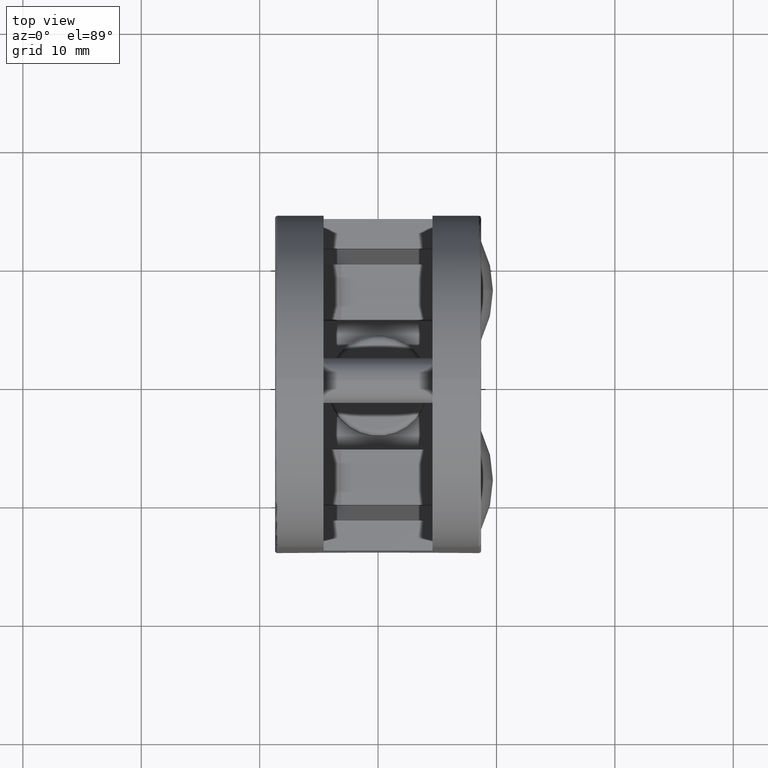
[diagram: clean part render]
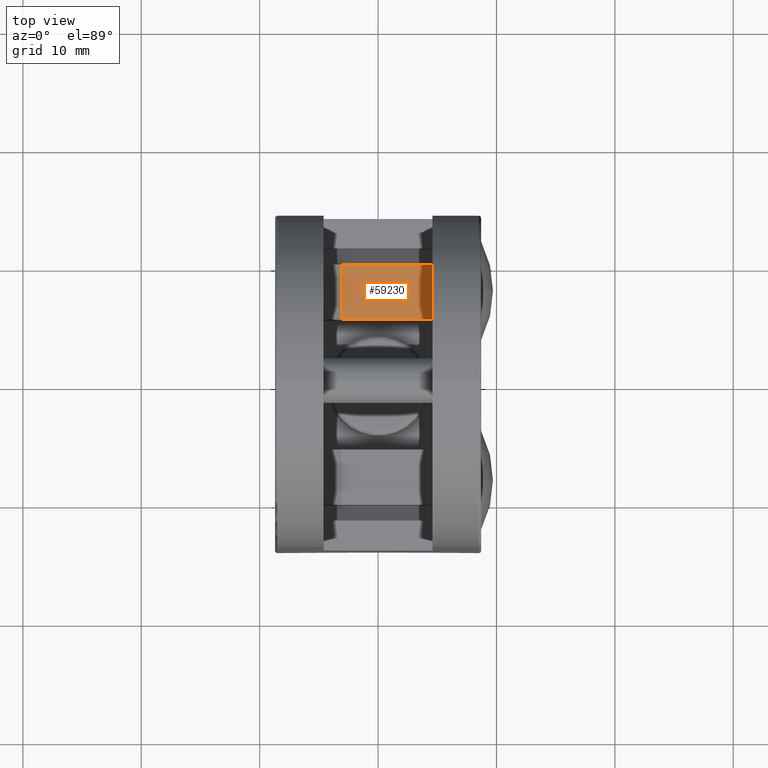
[diagram: same view with one face highlighted and labeled with its STEP entity id]
A machine part, top view. The second image highlights one B-rep face of the part: STEP entity #59230.
In plain terms, the highlighted planar face has unit normal (0, 0, -1).
Its self-contained STEP definition (entity closure, byte-faithful):
#2431 = DIRECTION ( 'NONE',  ( 0.0000000000000000000, 1.000000000000000000, 0.0000000000000000000 ) ) ;
#2957 = EDGE_LOOP ( 'NONE', ( #41777, #22920, #7260, #9313 ) ) ;
#5779 = CARTESIAN_POINT ( 'NONE',  ( 13.29999999999999900, 10.14999999999999900, 10.49999999999999600 ) ) ;
#6482 = VERTEX_POINT ( 'NONE', #11700 ) ;
#6821 = CARTESIAN_POINT ( 'NONE',  ( 5.599999999999998800, 3.378679656440356700, 10.50000000000000000 ) ) ;
#7260 = ORIENTED_EDGE ( 'NONE', *, *, #50876, .F. ) ;
#9025 = DIRECTION ( 'NONE',  ( 0.0000000000000000000, -1.000000000000000000, 0.0000000000000000000 ) ) ;
#9313 = ORIENTED_EDGE ( 'NONE', *, *, #50278, .F. ) ;
#9719 = VERTEX_POINT ( 'NONE', #13907 ) ;
#11700 = CARTESIAN_POINT ( 'NONE',  ( 5.599999999999998800, 10.14999999999999900, 10.50000000000000000 ) ) ;
#13907 = CARTESIAN_POINT ( 'NONE',  ( 13.29999999999999900, 5.499999999999999100, 10.49999999999999600 ) ) ;
#14101 = EDGE_CURVE ( 'NONE', #29106, #6482, #36912, .T. ) ;
#14694 = AXIS2_PLACEMENT_3D ( 'NONE', #5779, #25118, #58191 ) ;
#15736 = EDGE_CURVE ( 'NONE', #45143, #6482, #57940, .T. ) ;
#18063 = CARTESIAN_POINT ( 'NONE',  ( 5.599999999999998800, 5.499999999999999100, 10.50000000000000000 ) ) ;
#19014 = VECTOR ( 'NONE', #9025, 1000.000000000000000 ) ;
#19810 = CARTESIAN_POINT ( 'NONE',  ( 13.29999999999999900, 10.14999999999999900, 10.49999999999999600 ) ) ;
#22696 = VECTOR ( 'NONE', #32748, 1000.000000000000000 ) ;
#22920 = ORIENTED_EDGE ( 'NONE', *, *, #15736, .F. ) ;
#24009 = VECTOR ( 'NONE', #2431, 1000.000000000000000 ) ;
#25118 = DIRECTION ( 'NONE',  ( 0.0000000000000000000, 0.0000000000000000000, -1.000000000000000000 ) ) ;
#29106 = VERTEX_POINT ( 'NONE', #40196 ) ;
#31946 = FACE_OUTER_BOUND ( 'NONE', #2957, .T. ) ;
#32748 = DIRECTION ( 'NONE',  ( -1.000000000000000000, -0.0000000000000000000, -0.0000000000000000000 ) ) ;
#33942 = VECTOR ( 'NONE', #34779, 1000.000000000000000 ) ;
#34779 = DIRECTION ( 'NONE',  ( -1.000000000000000000, -0.0000000000000000000, -0.0000000000000000000 ) ) ;
#36912 = LINE ( 'NONE', #19810, #33942 ) ;
#37606 = CARTESIAN_POINT ( 'NONE',  ( 13.29999999999999900, 10.14999999999999900, 10.49999999999999600 ) ) ;
#40196 = CARTESIAN_POINT ( 'NONE',  ( 13.29999999999999900, 10.14999999999999900, 10.49999999999999600 ) ) ;
#41575 = LINE ( 'NONE', #37606, #19014 ) ;
#41777 = ORIENTED_EDGE ( 'NONE', *, *, #14101, .T. ) ;
#42984 = CARTESIAN_POINT ( 'NONE',  ( 13.29999999999999900, 5.499999999999999100, 10.49999999999999600 ) ) ;
#45143 = VERTEX_POINT ( 'NONE', #18063 ) ;
#50278 = EDGE_CURVE ( 'NONE', #29106, #9719, #41575, .T. ) ;
#50876 = EDGE_CURVE ( 'NONE', #9719, #45143, #59644, .T. ) ;
#53951 = PLANE ( 'NONE',  #14694 ) ;
#57940 = LINE ( 'NONE', #6821, #24009 ) ;
#58191 = DIRECTION ( 'NONE',  ( -1.000000000000000000, 0.0000000000000000000, -0.0000000000000000000 ) ) ;
#59230 = ADVANCED_FACE ( 'NONE', ( #31946 ), #53951, .F. ) ;
#59644 = LINE ( 'NONE', #42984, #22696 ) ;